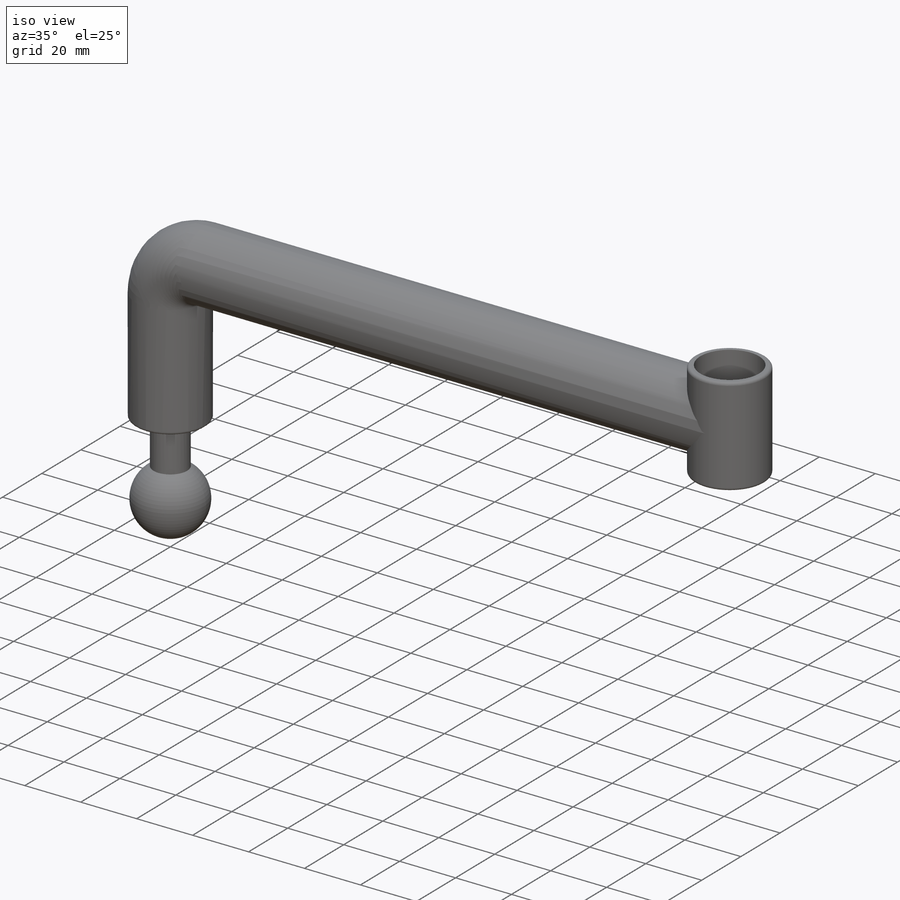
[diagram: iso view]
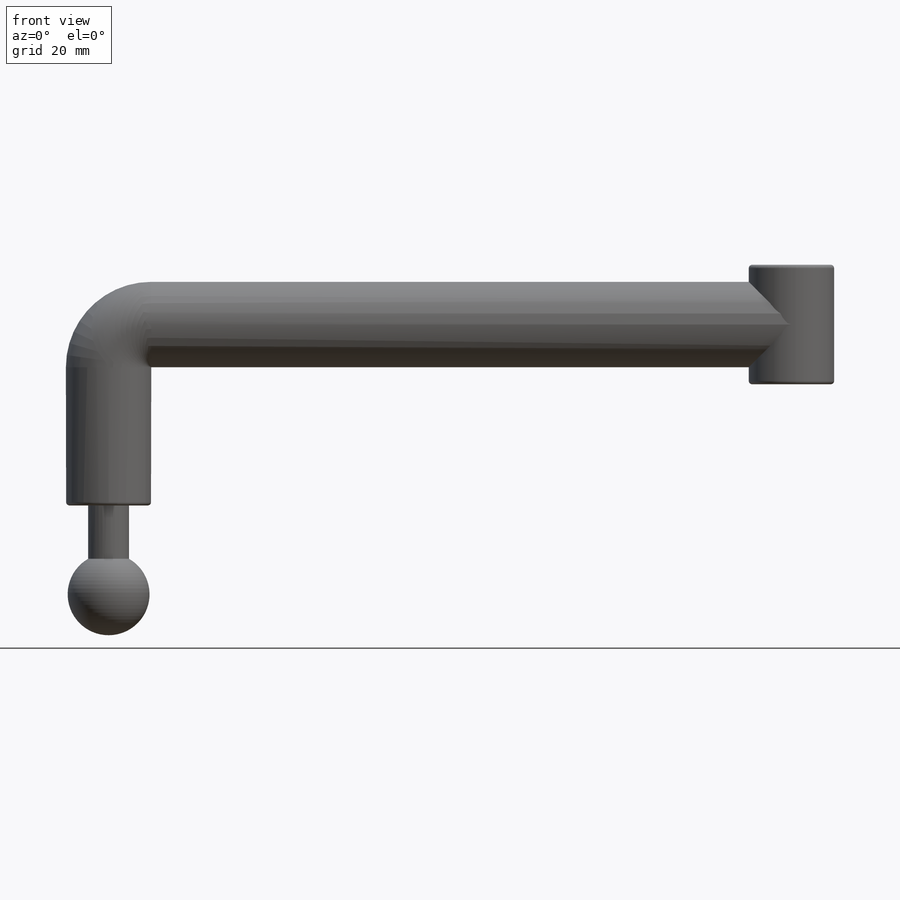
[diagram: front view]
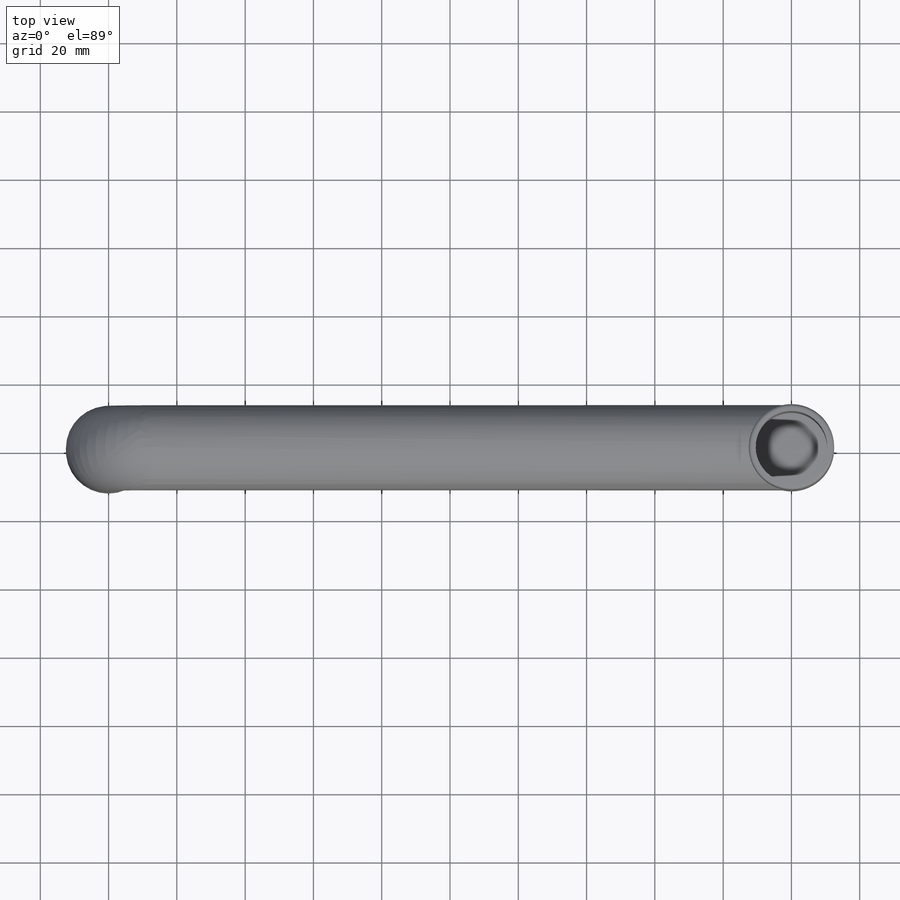
[diagram: top view]
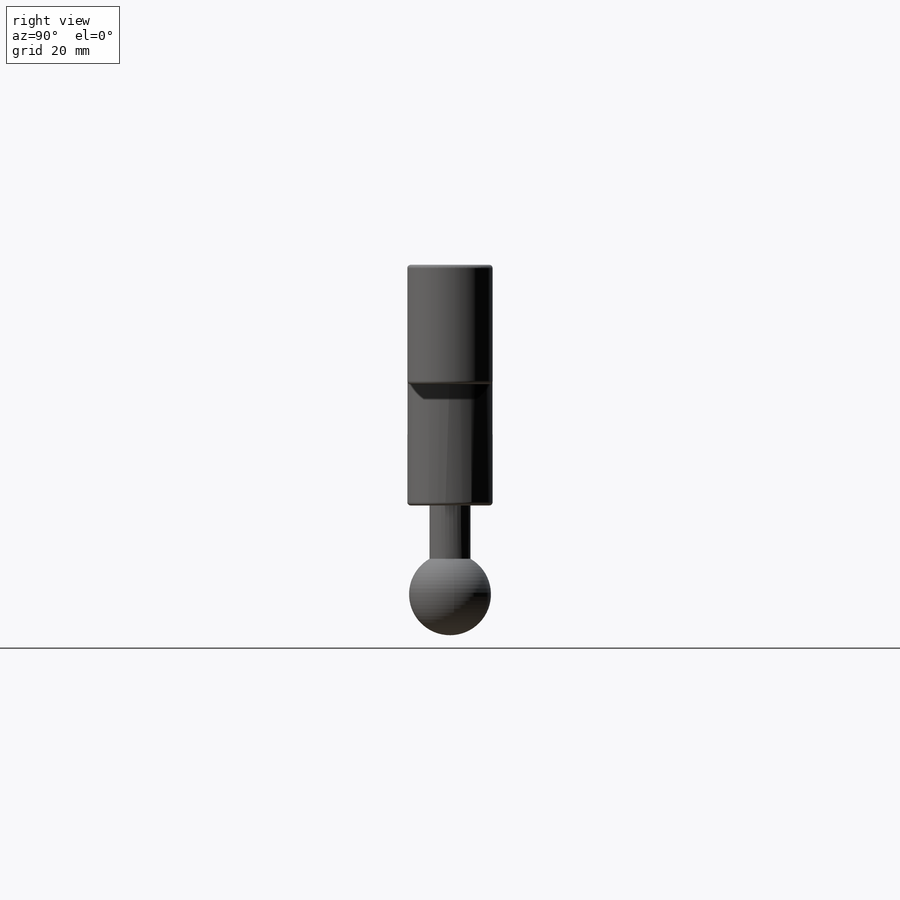
[diagram: right view]
SOLIDWORKS PART (.sldprt)
format: sldprt  version: not decoded by parser v0  size: 276,480 bytes
history: native  units: mm
features: sketch x8, plane x6, sweep x2, fillet x2, material x1, revolve x1, extrude x1, shell x1, cut_extrude x1 (+10 scaffold rows collapsed)
feature tree (33):
  scaffold x10  (default folders/planes/origin — collapsed)
  material  "材質 <未指定>"
  plane  "前基準面"
  plane  "上基準面"
  plane  "右基準面"
  sketch  "草圖1"  dims[D1=12.0mm]
  revolve  "旋轉1"  Angle=360deg
  sketch  "草圖2"  dims[D1=12.0mm]
  extrude  "填料-伸長1"  Depth=26mm
  sketch  "草圖3"  dims[D1=25.0mm]
  sketch  "草圖4"  dims[D1=12.5mm D2=200.0mm D3=35.0mm D4=17.5mm D5=53.0mm]
  sweep  "掃出1"
  sketch  "草圖5"  dims[c1.D1=200.0mm c1.D2=35.0mm c2.D1=17.5mm c2.D2=17.5mm]
  plane  "平面1"
  sketch  "草圖6"  dims[D1=25.0mm]
  sweep  "掃出2"
  shell  "薄殼1"  Thickness=2mm
  sketch  "草圖7"  dims[D1=0.0mm]
  cut_extrude  "除料-伸長1"  [1 undecoded]
  plane  "平面2"  Offset=0mm
  plane  "平面3"  Offset=0mm
  fillet  "圓角1"  Radius=1mm
  fillet  "圓角2"  Radius=1mm
  sketch  "草圖8"
decode coverage: 12 of 16 modeling features carry decoded parameters
note: 1 parameter value undecoded
note: suppression state not decoded; provenance and decode notes live in map.json
